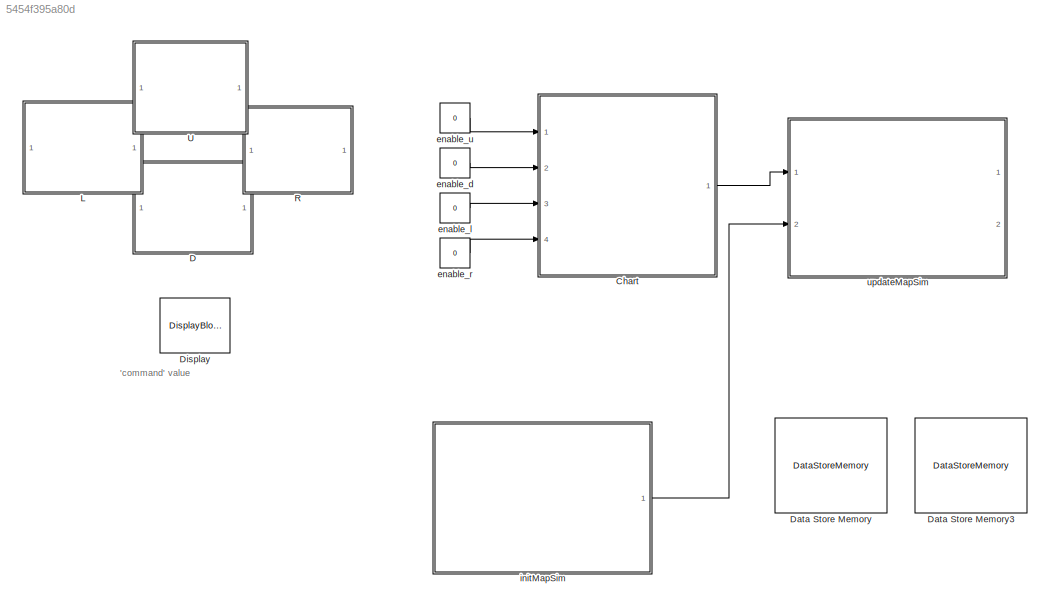
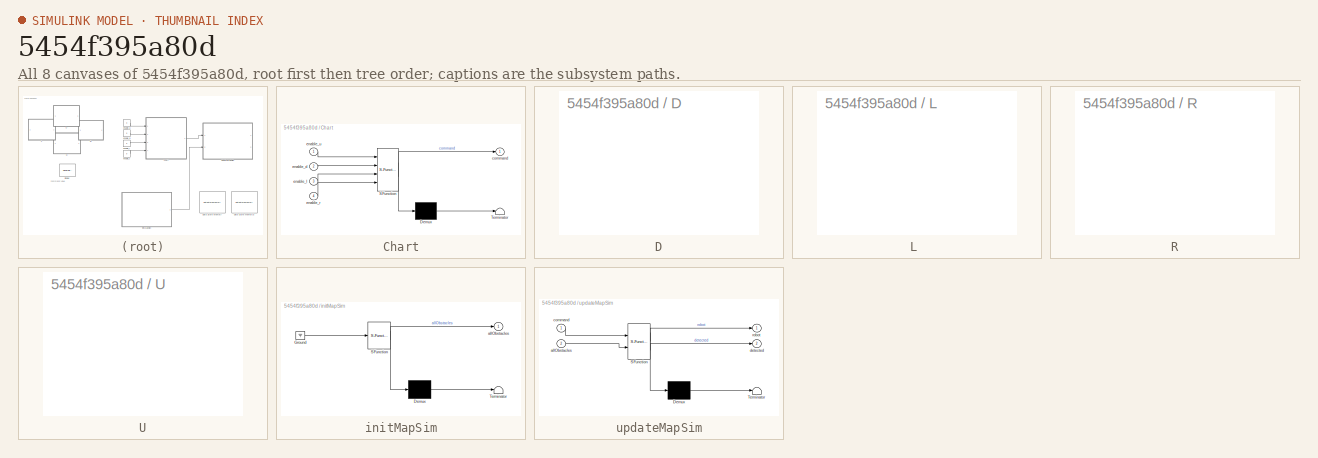
[diagram: thumbnail index - all 8 canvases of the model, root first then tree order]
MODEL slx_5454f395a80d
KIND model
CONFIG AbsTol = auto
CONFIG EnableMultiTasking = off
CONFIG FixedStep = auto
CONFIG MaxStep = auto
CONFIG MinStep = auto
CONFIG RelTol = 1e-3
CONFIG SampleTimeConstraint = Unconstrained
CONFIG Solver = VariableStepAuto
CONFIG SolverName = VariableStepAuto
CONFIG StartTime = 0.0
CONFIG StopTime = inf
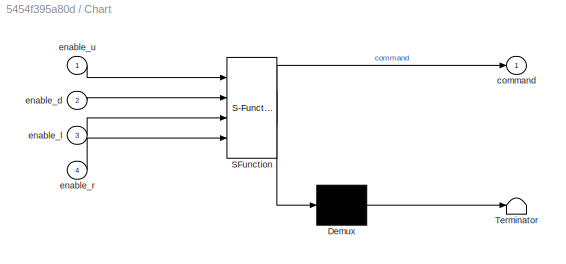
BLOCK [SubSystem] Chart
  ErrorFcn = Stateflow.Translate.translate
  PermitHierarchicalResolution = ExplicitOnly
  Ports = [4, 1]
  RequestExecContextInheritance = off
  SFBlockType = Chart
  TreatAsAtomicUnit = on
BLOCK [Demux] Chart/ Demux 
  Outputs = 1
  Ports = [1, 1]
BLOCK [S-Function] Chart/ SFunction 
  EnableBusSupport = on
  FunctionName = sf_sfun
  PortCounts = [4 2]
  Ports = [4, 2]
  SFcnIsStateOwnerBlock = off
  SFunctionDeploymentMode = off
  Tag = Stateflow S-Function sendCommand 3
BLOCK [Terminator] Chart/ Terminator 
BLOCK [Outport] Chart/command
  IconDisplay = Port number
BLOCK [Inport] Chart/enable_d
  IconDisplay = Port number
  Port = 2
BLOCK [Inport] Chart/enable_l
  IconDisplay = Port number
  Port = 3
BLOCK [Inport] Chart/enable_r
  IconDisplay = Port number
  Port = 4
BLOCK [Inport] Chart/enable_u
  IconDisplay = Port number
BLOCK [SubSystem] D
  DialogController = hmiCreateDDGDialog
  IsWebBlock = on
  Ports = []
  RequestExecContextInheritance = off
BLOCK [DataStoreMemory] Data Store Memory
  DataStoreName = xpos
  OutDataTypeStr = double
  ReadBeforeWriteMsg = warning
  ShowAdditionalParam = off
  SignalType = real
  WriteAfterReadMsg = warning
  WriteAfterWriteMsg = warning
BLOCK [DataStoreMemory] Data Store Memory3
  DataStoreName = ypos
  OutDataTypeStr = double
  ReadBeforeWriteMsg = warning
  ShowAdditionalParam = off
  SignalType = real
  WriteAfterReadMsg = warning
  WriteAfterWriteMsg = warning
BLOCK [DisplayBlock] Display
  LabelPosition = Hide
  WebBlockId = 14
BLOCK [SubSystem] L 
  DialogController = hmiCreateDDGDialog
  IsWebBlock = on
  Ports = []
  RequestExecContextInheritance = off
BLOCK [SubSystem] R
  DialogController = hmiCreateDDGDialog
  IsWebBlock = on
  Ports = []
  RequestExecContextInheritance = off
BLOCK [SubSystem] U
  DialogController = hmiCreateDDGDialog
  IsWebBlock = on
  Ports = []
  RequestExecContextInheritance = off
BLOCK [Constant] enable_d 
  Value = 0
BLOCK [Constant] enable_l 
  Value = 0
BLOCK [Constant] enable_r 
  Value = 0
BLOCK [Constant] enable_u 
  Value = 0
BLOCK [SubSystem] initMapSim
  ErrorFcn = Stateflow.Translate.translate
  PermitHierarchicalResolution = ExplicitOnly
  Ports = [0, 1]
  RequestExecContextInheritance = off
  SFBlockType = MATLAB Function
  TreatAsAtomicUnit = on
BLOCK [Demux] initMapSim/ Demux 
  Outputs = 1
  Ports = [1, 1]
BLOCK [Ground] initMapSim/ Ground 
BLOCK [S-Function] initMapSim/ SFunction 
  EnableBusSupport = on
  FunctionName = sf_sfun
  PortCounts = [1 2]
  Ports = [1, 2]
  SFcnIsStateOwnerBlock = off
  SFunctionDeploymentMode = off
  Tag = Stateflow S-Function sendCommand 1
BLOCK [Terminator] initMapSim/ Terminator 
BLOCK [Outport] initMapSim/allObstacles
  IconDisplay = Port number
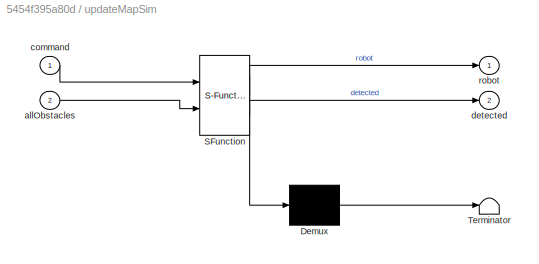
BLOCK [SubSystem] updateMapSim
  ErrorFcn = Stateflow.Translate.translate
  PermitHierarchicalResolution = ExplicitOnly
  Ports = [2, 2]
  RequestExecContextInheritance = off
  SFBlockType = MATLAB Function
  TreatAsAtomicUnit = on
BLOCK [Demux] updateMapSim/ Demux 
  Outputs = 1
  Ports = [1, 1]
BLOCK [S-Function] updateMapSim/ SFunction 
  EnableBusSupport = on
  FunctionName = sf_sfun
  PortCounts = [2 3]
  Ports = [2, 3]
  SFcnIsStateOwnerBlock = off
  SFunctionDeploymentMode = off
  Tag = Stateflow S-Function sendCommand 2
BLOCK [Terminator] updateMapSim/ Terminator 
BLOCK [Inport] updateMapSim/allObstacles
  IconDisplay = Port number
  Port = 2
BLOCK [Inport] updateMapSim/command
  IconDisplay = Port number
BLOCK [Outport] updateMapSim/detected
  IconDisplay = Port number
  Port = 2
BLOCK [Outport] updateMapSim/robot
  IconDisplay = Port number
ANNOTATION (root): 'command' value
LINE Chart:1 -> updateMapSim:1
LINE enable_d :1 -> Chart:2
LINE enable_l :1 -> Chart:3
LINE enable_r :1 -> Chart:4
LINE enable_u :1 -> Chart:1
LINE initMapSim:1 -> updateMapSim:2
CHART initMapSim states=1 transitions=1
  STATE_LABEL 'eML_blk_kernel()'
  STATE_LABEL "SCRIPT:\nfunction allObstacles = initMapSim\n    % Clear plot\n    clf('reset')\n    \n    % Parameters \n    global xpos ypos\n    xpos = 2000;\n    ypos = 2000;\n    xwall = 5756;\n    ywall = 3691;\n    distance_from_wall = 300;\n    \n    % Generate field wall \n    wall = generateRectangle(xwall,ywall);\n\n    % Generate virtual limit \n    limit = generateRectangle(xwall-2*distance_from_wall,ywall-2*distance...<+1226ch>"
CHART updateMapSim states=1 transitions=1
  STATE_LABEL 'eML_blk_kernel()'
  STATE_LABEL 'SCRIPT:\nfunction [robot, detected] = updateMapSim(command, allObstacles)\n    global xpos ypos\n    \n    % Base vision cone \n    line1 = [0,150,0; 300,450,0;];\n    line2 = [0,150,0; -300,450,0;];\n    line3 = [-300,450,0; 300,450,0;];\n    base_cone = vertcat(line1, line2, line3);\n    \n    % Base robot \n    xbase_robot = [0, -100, -100, +100, 100, 0];\n    ybase_robot = [150, 50, -150, -150, 50, 150];\n...<+1207ch>'
CHART Chart states=5 transitions=9
  STATE_LABEL 'no_input\nentry: command = 0\n'
  STATE_LABEL 'up\nentry: command = 1'
  STATE_LABEL 'down\nentry: command = 2'
  STATE_LABEL 'left\nentry: command = 3'
  STATE_LABEL 'right\nentry: command = 4'
